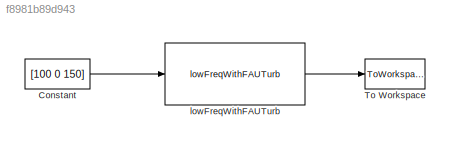
MODEL slx_f8981b89d943
KIND model
CONFIG AbsTol = auto
CONFIG EnableMultiTasking = off
CONFIG FixedStep = 0.001
CONFIG MaxStep = auto
CONFIG MinStep = auto
CONFIG RelTol = 1e-3
CONFIG SampleTimeConstraint = Unconstrained
CONFIG Solver = FixedStepAuto
CONFIG SolverName = FixedStepAuto
CONFIG StartTime = 0.0
CONFIG StopTime = 3600
BLOCK [Constant] Constant
  Value = [100 0 150]
BLOCK [ToWorkspace] To Workspace
  FixptAsFi = on
  MaxDataPoints = inf
  Ports = [1]
  SampleTime = -1
  Save2DSignal = 3-D array (concatenate along third dimension)
  SaveFormat = Timeseries
  VariableName = simout
BLOCK [Reference] lowFreqWithFAUTurb  REF=lowFreqWithFAUTurb_cl/lowFreqWithFAUTurb
  Ports = [1, 1]
  SourceBlock = lowFreqWithFAUTurb_cl/lowFreqWithFAUTurb
LINE Constant:1 -> lowFreqWithFAUTurb:1
LINE lowFreqWithFAUTurb:1 -> To Workspace:1
